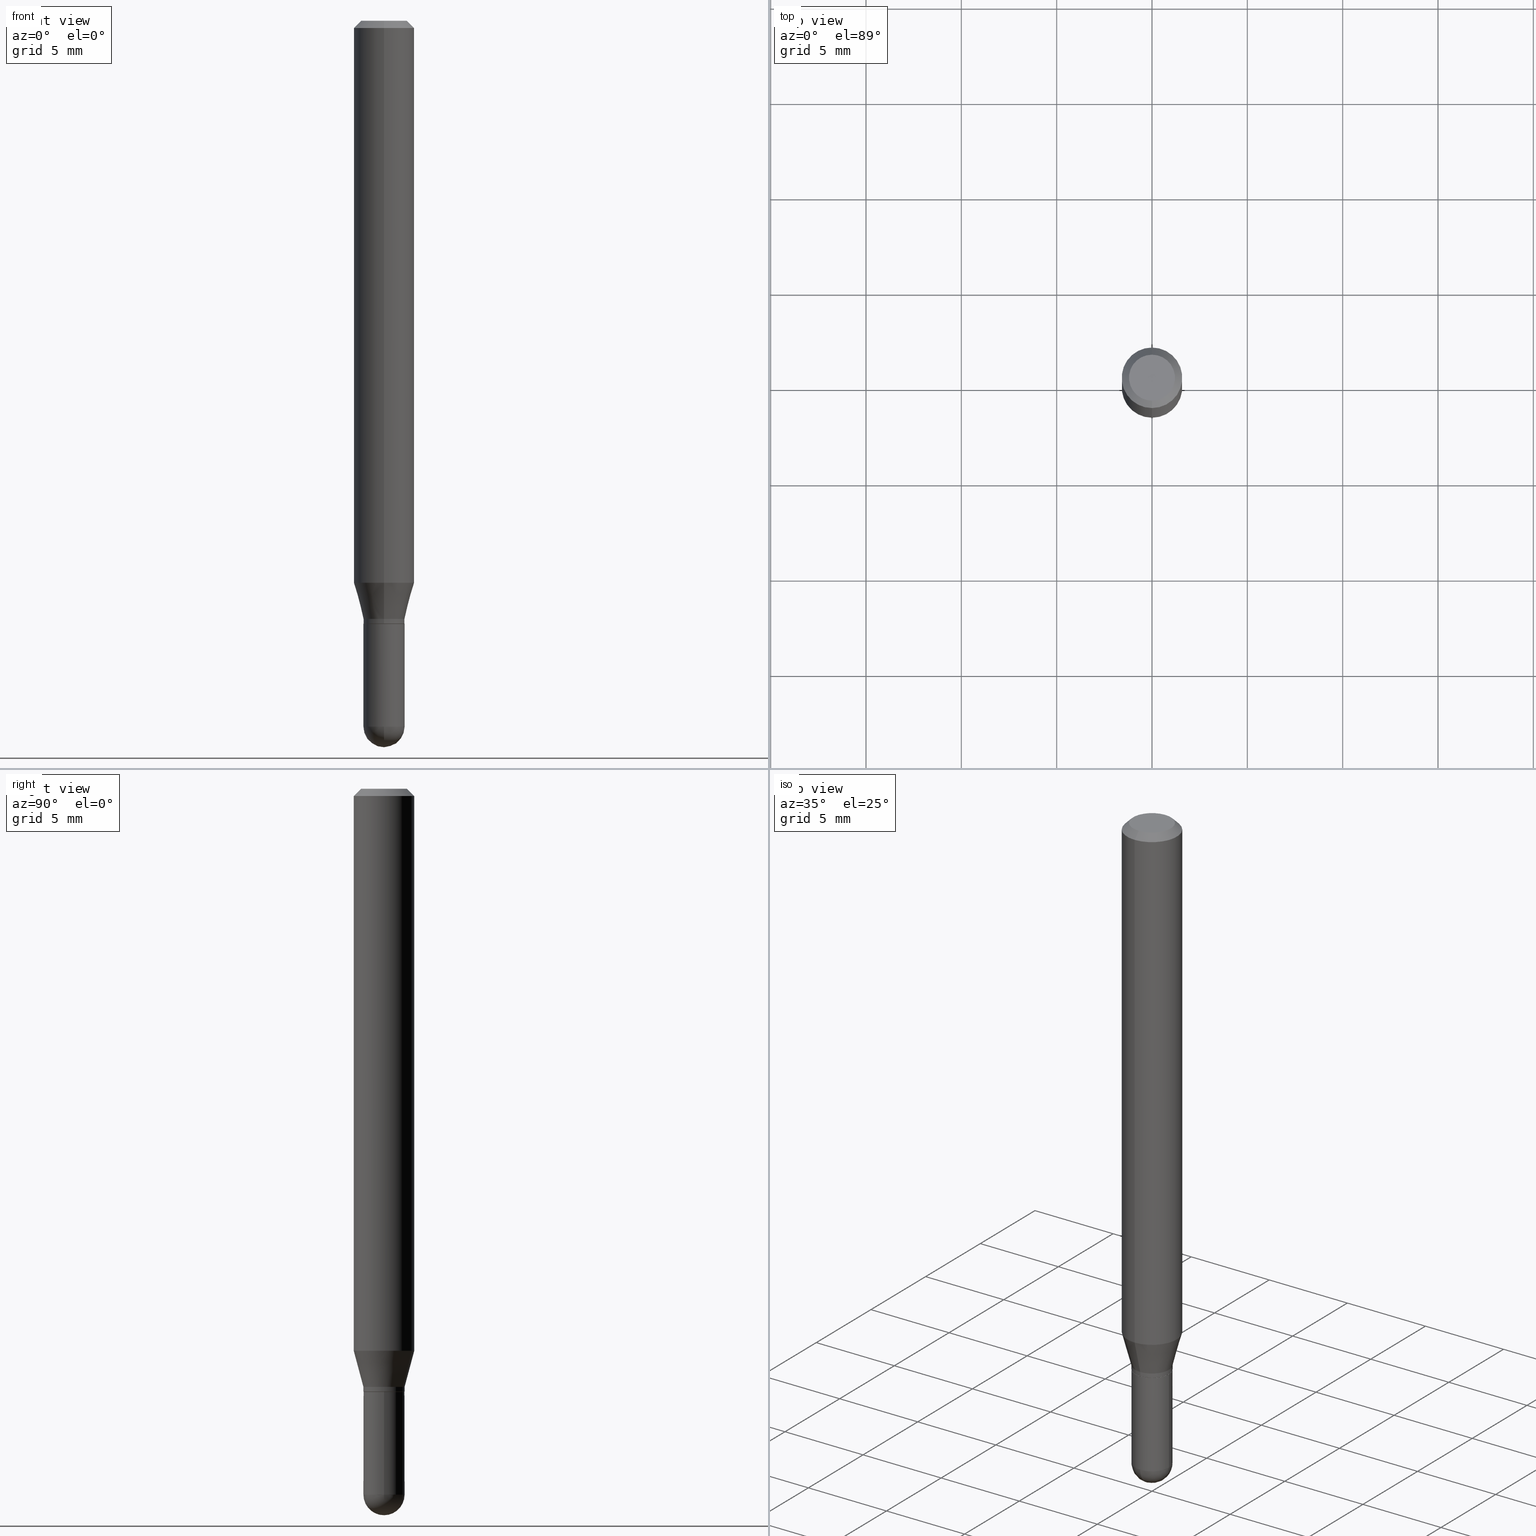
[diagram: canonical four-view strip — front | top / right | iso, engineering-drawing reading convention]
A machine part, canonical four-view strip (front | top / right | iso — engineering-drawing reading convention). The complete STEP part file that produces these views, byte-faithful:
ISO-10303-21;
HEADER;
FILE_DESCRIPTION (( 'STEP AP203' ),
    '1' );
FILE_NAME ('00943.STEP',
    '2024-03-07T19:05:51',
    ( '' ),
    ( '' ),
    'SwSTEP 2.0',
    'SolidWorks 2023',
    '' );
FILE_SCHEMA (( 'CONFIG_CONTROL_DESIGN' ));
ENDSEC;

DATA;
#1 = DIRECTION ( 'NONE',  ( -1.000000000000000000, 6.982962677686265922E-15, -4.883557194083112901E-29 ) ) ;
#2 = ADVANCED_FACE ( 'NONE', ( #134 ), #436, .F. ) ;
#3 = DIRECTION ( 'NONE',  ( -2.445524153731471341E-29, 3.491402078006607573E-15, 1.000000000000000000 ) ) ;
#4 = CARTESIAN_POINT ( 'NONE',  ( 3.044608663700495534E-29, -4.346894266859716647E-15, -1.245000000000000329 ) ) ;
#5 = PERSON_AND_ORGANIZATION_ROLE ( 'creator' ) ;
#6 = EDGE_CURVE ( 'NONE', #243, #298, #480, .T. ) ;
#7 = AXIS2_PLACEMENT_3D ( 'NONE', #495, #297, #339 ) ;
#8 = DIRECTION ( 'NONE',  ( -6.982962677686265922E-15, -1.000000000000000000, 3.491402078006607573E-15 ) ) ;
#9 = CONICAL_SURFACE ( 'NONE', #28, 0.04199999999999999567, 0.7853981633974739252 ) ;
#10 = DATE_AND_TIME ( #292, #64 ) ;
#11 = EDGE_CURVE ( 'NONE', #125, #319, #16, .T. ) ;
#12 = FACE_OUTER_BOUND ( 'NONE', #242, .T. ) ;
#13 = DIRECTION ( 'NONE',  ( -2.445524153731471341E-29, 3.491402078006607573E-15, 1.000000000000000000 ) ) ;
#14 = PERSON_AND_ORGANIZATION ( #176, #182 ) ;
#15 = FACE_OUTER_BOUND ( 'NONE', #431, .T. ) ;
#16 = CIRCLE ( 'NONE', #123, 0.04749999999999999362 ) ;
#17 = ORIENTED_EDGE ( 'NONE', *, *, #23, .T. ) ;
#18 = CIRCLE ( 'NONE', #326, 0.04249999999999991979 ) ;
#19 = CC_DESIGN_APPROVAL ( #82, ( #449 ) ) ;
#20 = CARTESIAN_POINT ( 'NONE',  ( 2.967759138017017551E-16, 0.04249999999999488215, -1.457500000000000462 ) ) ;
#21 = CARTESIAN_POINT ( 'NONE',  ( 3.002043058586724733E-16, 0.04199999999999565192, -1.245000000000000551 ) ) ;
#22 = EDGE_LOOP ( 'NONE', ( #273, #105, #506, #275, #429 ) ) ;
#23 = EDGE_CURVE ( 'NONE', #319, #354, #360, .T. ) ;
#24 = DIRECTION ( 'NONE',  ( -2.445524153731471341E-29, 3.491402078006607573E-15, 1.000000000000000000 ) ) ;
#25 = COORDINATED_UNIVERSAL_TIME_OFFSET ( 5, 0, .BEHIND. ) ;
#26 = DIRECTION ( 'NONE',  ( -2.445524153731471341E-29, 3.491402078006607573E-15, 1.000000000000000000 ) ) ;
#27 = ORIENTED_EDGE ( 'NONE', *, *, #427, .T. ) ;
#28 = AXIS2_PLACEMENT_3D ( 'NONE', #65, #26, #111 ) ;
#29 = CARTESIAN_POINT ( 'NONE',  ( 4.440892098500911138E-16, 0.06249999999999995143, -0.01500000000000022669 ) ) ;
#30 = PRODUCT_RELATED_PRODUCT_CATEGORY ( 'detail', '', ( #144 ) ) ;
#31 = ORIENTED_EDGE ( 'NONE', *, *, #146, .F. ) ;
#32 = APPROVAL_DATE_TIME ( #70, #404 ) ;
#33 = CARTESIAN_POINT ( 'NONE',  ( 3.668286230597209534E-31, -5.237103117009914490E-17, -0.01500000000000000812 ) ) ;
#34 = ORIENTED_EDGE ( 'NONE', *, *, #277, .F. ) ;
#35 = LINE ( 'NONE', #237, #300 ) ;
#36 = ORIENTED_EDGE ( 'NONE', *, *, #62, .F. ) ;
#37 = AXIS2_PLACEMENT_3D ( 'NONE', #4, #167, #365 ) ;
#38 = AXIS2_PLACEMENT_3D ( 'NONE', #336, #24, #451 ) ;
#39 = CC_DESIGN_APPROVAL ( #379, ( #471 ) ) ;
#40 = DIRECTION ( 'NONE',  ( 6.982962677686265922E-15, 1.000000000000000000, -6.427877632151214487E-15 ) ) ;
#41 = ORIENTED_EDGE ( 'NONE', *, *, #195, .T. ) ;
#42 = EDGE_CURVE ( 'NONE', #44, #58, #328, .T. ) ;
#43 = ORIENTED_EDGE ( 'NONE', *, *, #450, .F. ) ;
#44 = VERTEX_POINT ( 'NONE', #171 ) ;
#45 = CARTESIAN_POINT ( 'NONE',  ( 3.666385980913199605E-29, -5.239824382712906867E-15, -1.500000000000000222 ) ) ;
#46 = CARTESIAN_POINT ( 'NONE',  ( 0.04250000000000000999, -5.014640072913468189E-15, -1.457500000000000240 ) ) ;
#47 = CARTESIAN_POINT ( 'NONE',  ( -0.04250000000000000999, 3.019806626980426500E-16, -2.090547413358335560E-30 ) ) ;
#48 = PERSON_AND_ORGANIZATION ( #176, #182 ) ;
#49 = FACE_OUTER_BOUND ( 'NONE', #308, .T. ) ;
#50 = MECHANICAL_CONTEXT ( 'NONE', #397, 'mechanical' ) ;
#51 = ADVANCED_FACE ( 'NONE', ( #49 ), #61, .T. ) ;
#52 = AXIS2_PLACEMENT_3D ( 'NONE', #132, #1, #165 ) ;
#53 = AXIS2_PLACEMENT_3D ( 'NONE', #488, #177, #414 ) ;
#54 = DIRECTION ( 'NONE',  ( -2.445524153731471341E-29, 3.491402078006607573E-15, 1.000000000000000000 ) ) ;
#55 =( NAMED_UNIT ( * ) PLANE_ANGLE_UNIT ( ) SI_UNIT ( $, .RADIAN. ) );
#56 = DIRECTION ( 'NONE',  ( -2.445524153731471341E-29, 3.491402078006607573E-15, 1.000000000000000000 ) ) ;
#57 = DIRECTION ( 'NONE',  ( 1.000000000000000000, -6.982962677686273810E-15, 0.000000000000000000 ) ) ;
#58 = VERTEX_POINT ( 'NONE', #209 ) ;
#59 = DATE_AND_TIME ( #295, #278 ) ;
#60 = CARTESIAN_POINT ( 'NONE',  ( 3.564270785014837509E-29, -5.088834051363884851E-15, -1.457500000000000240 ) ) ;
#61 = CONICAL_SURFACE ( 'NONE', #219, 0.04199999999999999567, 0.7853981633974739252 ) ;
#62 = EDGE_CURVE ( 'NONE', #415, #418, #262, .T. ) ;
#63 = VECTOR ( 'NONE', #71, 39.37007874015748143 ) ;
#64 = LOCAL_TIME ( 14, 5, 51.00000000000000000, #139 ) ;
#65 = CARTESIAN_POINT ( 'NONE',  ( 3.044677571395682722E-29, -4.346795587118226777E-15, -1.245000000000000329 ) ) ;
#66 = ORIENTED_EDGE ( 'NONE', *, *, #42, .F. ) ;
#67 = DIRECTION ( 'NONE',  ( -6.982962677686266711E-15, -1.000000000000000000, 3.491402078006607967E-15 ) ) ;
#68 = MANIFOLD_SOLID_BREP ( 'Body-Move/Copy2[2]', #341 ) ;
#69 = MANIFOLD_SOLID_BREP ( 'Body-Move/Copy2[1]', #509 ) ;
#70 = DATE_AND_TIME ( #340, #439 ) ;
#71 = DIRECTION ( 'NONE',  ( -2.445524153731471341E-29, 3.491402078006607967E-15, 1.000000000000000000 ) ) ;
#72 = EDGE_LOOP ( 'NONE', ( #31, #101, #311, #120 ) ) ;
#73 = CONICAL_SURFACE ( 'NONE', #53, 0.06250000000000000000, 0.7853981633974483900 ) ;
#74 = SHAPE_DEFINITION_REPRESENTATION ( #428, #313 ) ;
#75 = APPROVAL_PERSON_ORGANIZATION ( #233, #404, #265 ) ;
#76 = LINE ( 'NONE', #426, #312 ) ;
#77 = ORIENTED_EDGE ( 'NONE', *, *, #479, .T. ) ;
#78 = CARTESIAN_POINT ( 'NONE',  ( 3.560636328285825248E-29, -5.094038800260261442E-15, -1.457500000000000240 ) ) ;
#79 = ORIENTED_EDGE ( 'NONE', *, *, #215, .T. ) ;
#80 = DIRECTION ( 'NONE',  ( -6.982962677686265922E-15, -1.000000000000000000, 4.370956789862821150E-15 ) ) ;
#81 = ORIENTED_EDGE ( 'NONE', *, *, #484, .F. ) ;
#82 = APPROVAL ( #408, 'UNSPECIFIED' ) ;
#83 = AXIS2_PLACEMENT_3D ( 'NONE', #127, #322, #216 ) ;
#84 = ORIENTED_EDGE ( 'NONE', *, *, #353, .F. ) ;
#85 = EDGE_CURVE ( 'NONE', #458, #354, #299, .T. ) ;
#86 = DIMENSIONAL_EXPONENTS ( 1.000000000000000000, 0.000000000000000000, 0.000000000000000000, 0.000000000000000000, 0.000000000000000000, 0.000000000000000000, 0.000000000000000000 ) ;
#87 = ORIENTED_EDGE ( 'NONE', *, *, #23, .F. ) ;
#88 = ADVANCED_FACE ( 'NONE', ( #94 ), #441, .T. ) ;
#89 = CYLINDRICAL_SURFACE ( 'NONE', #147, 0.04250000000000000999 ) ;
#90 = DIRECTION ( 'NONE',  ( 2.445524153731470781E-29, -3.491402078006607967E-15, -1.000000000000000000 ) ) ;
#91 = CIRCLE ( 'NONE', #192, 0.04199999999999999567 ) ;
#92 = FACE_OUTER_BOUND ( 'NONE', #412, .T. ) ;
#93 = CARTESIAN_POINT ( 'NONE',  ( 0.000000000000000000, 0.000000000000000000, 0.000000000000000000 ) ) ;
#94 = FACE_OUTER_BOUND ( 'NONE', #151, .T. ) ;
#95 = LINE ( 'NONE', #47, #363 ) ;
#96 = APPROVAL_STATUS ( 'not_yet_approved' ) ;
#97 = CIRCLE ( 'NONE', #276, 0.06250000000000000000 ) ;
#98 = DIRECTION ( 'NONE',  ( -6.982962677686265922E-15, -1.000000000000000000, 4.370956789862821150E-15 ) ) ;
#99 = UNCERTAINTY_MEASURE_WITH_UNIT (LENGTH_MEASURE( 1.000000000000000082E-05 ), #373, 'distance_accuracy_value', 'NONE');
#100 = LINE ( 'NONE', #257, #245 ) ;
#101 = ORIENTED_EDGE ( 'NONE', *, *, #410, .T. ) ;
#102 = PERSON_AND_ORGANIZATION_ROLE ( 'design_supplier' ) ;
#103 = EDGE_CURVE ( 'NONE', #485, #415, #95, .T. ) ;
#104 = DIRECTION ( 'NONE',  ( -6.982962677686265922E-15, -1.000000000000000000, 3.483106191921935554E-15 ) ) ;
#105 = ORIENTED_EDGE ( 'NONE', *, *, #103, .T. ) ;
#106 = DIRECTION ( 'NONE',  ( -2.445524153731471341E-29, 3.491402078006607573E-15, 1.000000000000000000 ) ) ;
#107 = CIRCLE ( 'NONE', #7, 0.04249999999999991979 ) ;
#108 = SECURITY_CLASSIFICATION ( '', '', #259 ) ;
#109 = DIRECTION ( 'NONE',  ( -6.982962677686265922E-15, -1.000000000000000000, 3.491402078006607573E-15 ) ) ;
#110 = ADVANCED_FACE ( 'NONE', ( #12 ), #447, .T. ) ;
#111 = DIRECTION ( 'NONE',  ( -6.982962677686265922E-15, -1.000000000000000000, 6.504399984914913214E-15 ) ) ;
#112 = DIRECTION ( 'NONE',  ( -2.445524153731471341E-29, 3.491402078006607573E-15, 1.000000000000000000 ) ) ;
#113 = ORIENTED_EDGE ( 'NONE', *, *, #133, .F. ) ;
#114 = VECTOR ( 'NONE', #164, 39.37007874015748143 ) ;
#115 = AXIS2_PLACEMENT_3D ( 'NONE', #351, #90, #400 ) ;
#116 = CARTESIAN_POINT ( 'NONE',  ( 3.560636328285825248E-29, -5.094038800260261442E-15, -1.457500000000000240 ) ) ;
#117 = EDGE_LOOP ( 'NONE', ( #225, #337, #396, #279 ) ) ;
#118 = DIRECTION ( 'NONE',  ( 2.445524153731471341E-29, -3.491402078006607573E-15, -1.000000000000000000 ) ) ;
#119 = ADVANCED_FACE ( 'NONE', ( #244 ), #204, .T. ) ;
#120 = ORIENTED_EDGE ( 'NONE', *, *, #85, .F. ) ;
#121 = DIRECTION ( 'NONE',  ( 5.024295867788190974E-15, 0.7071067811865681119, 0.7071067811865270336 ) ) ;
#122 = VERTEX_POINT ( 'NONE', #45 ) ;
#123 = AXIS2_PLACEMENT_3D ( 'NONE', #405, #54, #213 ) ;
#124 = CIRCLE ( 'NONE', #448, 0.04250000000000000999 ) ;
#125 = VERTEX_POINT ( 'NONE', #476 ) ;
#126 = ADVANCED_FACE ( 'NONE', ( #128 ), #398, .T. ) ;
#127 = CARTESIAN_POINT ( 'NONE',  ( 0.000000000000000000, 0.000000000000000000, 0.000000000000000000 ) ) ;
#128 = FACE_OUTER_BOUND ( 'NONE', #186, .T. ) ;
#129 = DIRECTION ( 'NONE',  ( -6.982962677686266711E-15, -1.000000000000000000, 6.427877632151220009E-15 ) ) ;
#130 = AXIS2_PLACEMENT_3D ( 'NONE', #270, #112, #323 ) ;
#131 = CARTESIAN_POINT ( 'NONE',  ( 3.044677571395682722E-29, -4.346795587118226777E-15, -1.245000000000000329 ) ) ;
#132 = CARTESIAN_POINT ( 'NONE',  ( 3.560636328285825248E-29, -5.094038800260261442E-15, -1.457500000000000240 ) ) ;
#133 = EDGE_CURVE ( 'NONE', #122, #258, #190, .T. ) ;
#134 = FACE_OUTER_BOUND ( 'NONE', #381, .T. ) ;
#135 = DATE_TIME_ROLE ( 'creation_date' ) ;
#136 = AXIS2_PLACEMENT_3D ( 'NONE', #302, #342, #333 ) ;
#137 = DIRECTION ( 'NONE',  ( -2.445468806185136597E-29, 3.491481338843145583E-15, 1.000000000000000000 ) ) ;
#138 = AXIS2_PLACEMENT_3D ( 'NONE', #93, #214, #251 ) ;
#139 = COORDINATED_UNIVERSAL_TIME_OFFSET ( 5, 0, .BEHIND. ) ;
#140 = ADVANCED_FACE ( 'NONE', ( #92 ), #89, .T. ) ;
#141 = CARTESIAN_POINT ( 'NONE',  ( 2.167733270038758827E-46, -3.094808297856797066E-32, -8.864084481566663675E-18 ) ) ;
#142 = CARTESIAN_POINT ( 'NONE',  ( 3.668286230597209534E-31, -5.237103117009914490E-17, -0.01500000000000000812 ) ) ;
#143 = DATE_TIME_ROLE ( 'classification_date' ) ;
#144 = PRODUCT ( '00943', '00943', '', ( #50 ) ) ;
#145 = DIRECTION ( 'NONE',  ( -2.445468806185136597E-29, 3.491481338843145583E-15, 1.000000000000000000 ) ) ;
#146 = EDGE_CURVE ( 'NONE', #298, #458, #206, .T. ) ;
#147 = AXIS2_PLACEMENT_3D ( 'NONE', #437, #247, #401 ) ;
#148 = CARTESIAN_POINT ( 'NONE',  ( 4.440892098500625669E-16, 0.06250000000000000000, -2.182126298754129733E-16 ) ) ;
#149 = EDGE_LOOP ( 'NONE', ( #236, #240 ) ) ;
#150 = CARTESIAN_POINT ( 'NONE',  ( -4.364351673553912750E-16, -0.06250000000000005551, -0.01499999999999979128 ) ) ;
#151 = EDGE_LOOP ( 'NONE', ( #507, #466, #377, #498 ) ) ;
#152 = DIRECTION ( 'NONE',  ( 4.937700262164548042E-15, 0.7071067811865451302, -0.7071067811865499042 ) ) ;
#153 = ORIENTED_EDGE ( 'NONE', *, *, #335, .F. ) ;
#154 = VECTOR ( 'NONE', #481, 39.37007874015748143 ) ;
#155 = CIRCLE ( 'NONE', #357, 0.06250000000000000000 ) ;
#156 = EDGE_CURVE ( 'NONE', #504, #485, #310, .T. ) ;
#157 = CYLINDRICAL_SURFACE ( 'NONE', #407, 0.04250000000000000999 ) ;
#158 = VERTEX_POINT ( 'NONE', #294 ) ;
#159 = DIRECTION ( 'NONE',  ( 1.000000000000000000, -6.982962677686273810E-15, 0.000000000000000000 ) ) ;
#160 = EDGE_LOOP ( 'NONE', ( #87, #468, #349, #344 ) ) ;
#161 = ORIENTED_EDGE ( 'NONE', *, *, #62, .T. ) ;
#162 = EDGE_CURVE ( 'NONE', #197, #44, #100, .T. ) ;
#163 = CIRCLE ( 'NONE', #496, 0.04249999999999999611 ) ;
#164 = DIRECTION ( 'NONE',  ( -4.851104656540964275E-15, -0.7071067811865500152, -0.7071067811865450192 ) ) ;
#165 = DIRECTION ( 'NONE',  ( 6.982962677686265922E-15, 1.000000000000000000, -6.427877632151214487E-15 ) ) ;
#166 = CARTESIAN_POINT ( 'NONE',  ( 0.04250000000000000999, -2.967759138016664042E-16, 2.072375129713273202E-30 ) ) ;
#167 = DIRECTION ( 'NONE',  ( -2.445468806185136597E-29, 3.491481338843145583E-15, 1.000000000000000000 ) ) ;
#168 = COORDINATED_UNIVERSAL_TIME_OFFSET ( 5, 0, .BEHIND. ) ;
#169 = CC_DESIGN_DATE_AND_TIME_ASSIGNMENT ( #179, #135, ( #471 ) ) ;
#170 = APPROVAL_PERSON_ORGANIZATION ( #249, #82, #402 ) ;
#171 = CARTESIAN_POINT ( 'NONE',  ( -2.967759138016344061E-16, -0.04250000000000413863, -1.244500000000000162 ) ) ;
#172 = PERSON_AND_ORGANIZATION ( #176, #182 ) ;
#173 = DIRECTION ( 'NONE',  ( 2.438088387897960049E-29, -3.491481338843145188E-15, -1.000000000000000000 ) ) ;
#174 = ADVANCED_FACE ( 'NONE', ( #221 ), #9, .T. ) ;
#175 =( LENGTH_UNIT ( ) NAMED_UNIT ( * ) SI_UNIT ( $, .METRE. ) );
#176 = PERSON ( 'UNSPECIFIED', 'UNSPECIFIED', 'UNSPECIFIED', ('UNSPECIFIED'), ('UNSPECIFIED'), ('UNSPECIFIED') ) ;
#177 = DIRECTION ( 'NONE',  ( 2.445524153731471341E-29, -3.491402078006607573E-15, -1.000000000000000000 ) ) ;
#178 = EDGE_CURVE ( 'NONE', #238, #197, #254, .T. ) ;
#179 = DATE_AND_TIME ( #331, #222 ) ;
#180 = VECTOR ( 'NONE', #499, 39.37007874015748143 ) ;
#181 = PLANE ( 'NONE',  #136 ) ;
#182 = ORGANIZATION ( 'UNSPECIFIED', 'UNSPECIFIED', '' ) ;
#183 = ORIENTED_EDGE ( 'NONE', *, *, #264, .T. ) ;
#184 = APPROVAL_DATE_TIME ( #10, #82 ) ;
#185 = FACE_OUTER_BOUND ( 'NONE', #475, .T. ) ;
#186 = EDGE_LOOP ( 'NONE', ( #113, #434, #153, #493 ) ) ;
#187 = CARTESIAN_POINT ( 'NONE',  ( -2.967759138016355400E-16, -0.04250000000000423578, -1.234999999999999876 ) ) ;
#188 = DESIGN_CONTEXT ( 'detailed design', #508, 'design' ) ;
#189 = CC_DESIGN_DATE_AND_TIME_ASSIGNMENT ( #455, #143, ( #108 ) ) ;
#190 = CIRCLE ( 'NONE', #472, 0.04249999999999995448 ) ;
#191 = CARTESIAN_POINT ( 'NONE',  ( 3.020222329858367571E-29, -4.311881566338161202E-15, -1.235000000000000098 ) ) ;
#192 = AXIS2_PLACEMENT_3D ( 'NONE', #334, #361, #368 ) ;
#193 = LINE ( 'NONE', #345, #180 ) ;
#194 = ORIENTED_EDGE ( 'NONE', *, *, #178, .F. ) ;
#195 = EDGE_CURVE ( 'NONE', #158, #58, #18, .T. ) ;
#196 = FACE_OUTER_BOUND ( 'NONE', #22, .T. ) ;
#197 = VERTEX_POINT ( 'NONE', #367 ) ;
#198 = FACE_OUTER_BOUND ( 'NONE', #149, .T. ) ;
#199 = ORIENTED_EDGE ( 'NONE', *, *, #450, .T. ) ;
#200 = ADVANCED_FACE ( 'NONE', ( #492 ), #73, .T. ) ;
#201 = ORIENTED_EDGE ( 'NONE', *, *, #442, .T. ) ;
#202 = ORIENTED_EDGE ( 'NONE', *, *, #296, .F. ) ;
#203 = AXIS2_PLACEMENT_3D ( 'NONE', #348, #424, #159 ) ;
#204 = CYLINDRICAL_SURFACE ( 'NONE', #406, 0.06250000000000000000 ) ;
#205 = LINE ( 'NONE', #166, #510 ) ;
#206 = LINE ( 'NONE', #148, #63 ) ;
#207 = ADVANCED_FACE ( 'NONE', ( #454 ), #419, .T. ) ;
#208 = APPROVAL_ROLE ( '' ) ;
#209 = CARTESIAN_POINT ( 'NONE',  ( -2.967759138016355400E-16, -0.04250000000000423578, -1.234999999999999876 ) ) ;
#210 = AXIS2_PLACEMENT_3D ( 'NONE', #252, #403, #362 ) ;
#211 = PERSON_AND_ORGANIZATION ( #176, #182 ) ;
#212 = AXIS2_PLACEMENT_3D ( 'NONE', #267, #106, #497 ) ;
#213 = DIRECTION ( 'NONE',  ( -6.982962677686266711E-15, -1.000000000000000000, 3.491402078006607967E-15 ) ) ;
#214 = DIRECTION ( 'NONE',  ( 0.000000000000000000, 0.000000000000000000, 1.000000000000000000 ) ) ;
#215 = EDGE_CURVE ( 'NONE', #354, #458, #155, .T. ) ;
#216 = DIRECTION ( 'NONE',  ( -6.982962677686266711E-15, -1.000000000000000000, 3.491402078006607573E-15 ) ) ;
#217 = PERSON_AND_ORGANIZATION ( #176, #182 ) ;
#218 = DIRECTION ( 'NONE',  ( -1.807323732225329350E-15, -0.2588190451025180194, 0.9659258262890689783 ) ) ;
#219 = AXIS2_PLACEMENT_3D ( 'NONE', #131, #283, #409 ) ;
#220 = CIRCLE ( 'NONE', #203, 0.04250000000000000999 ) ;
#221 = FACE_OUTER_BOUND ( 'NONE', #347, .T. ) ;
#222 = LOCAL_TIME ( 14, 5, 51.00000000000000000, #487 ) ;
#223 = ORIENTED_EDGE ( 'NONE', *, *, #486, .F. ) ;
#224 = DIRECTION ( 'NONE',  ( -2.445524153731471341E-29, 3.491402078006607573E-15, 1.000000000000000000 ) ) ;
#225 = ORIENTED_EDGE ( 'NONE', *, *, #306, .F. ) ;
#226 = EDGE_CURVE ( 'NONE', #418, #415, #163, .T. ) ;
#227 = CARTESIAN_POINT ( 'NONE',  ( 4.440892098500911138E-16, 0.06249999999999597544, -1.160358983848622794 ) ) ;
#228 = EDGE_LOOP ( 'NONE', ( #201, #77, #43, #66 ) ) ;
#229 = DIRECTION ( 'NONE',  ( -6.982962677686266711E-15, -1.000000000000000000, 6.427877632151220009E-15 ) ) ;
#230 = CIRCLE ( 'NONE', #320, 0.04749999999999999362 ) ;
#231 =( GEOMETRIC_REPRESENTATION_CONTEXT ( 3 ) GLOBAL_UNCERTAINTY_ASSIGNED_CONTEXT ( ( #99 ) ) GLOBAL_UNIT_ASSIGNED_CONTEXT ( ( #373, #55, #443 ) ) REPRESENTATION_CONTEXT ( 'NONE', 'WORKASPACE' ) );
#232 = AXIS2_PLACEMENT_3D ( 'NONE', #287, #173, #358 ) ;
#233 = PERSON_AND_ORGANIZATION ( #176, #182 ) ;
#234 = DIRECTION ( 'NONE',  ( -1.000000000000000000, 6.982962677686265922E-15, -4.883557194083112901E-29 ) ) ;
#235 = EDGE_CURVE ( 'NONE', #485, #258, #391, .T. ) ;
#236 = ORIENTED_EDGE ( 'NONE', *, *, #11, .T. ) ;
#237 = CARTESIAN_POINT ( 'NONE',  ( -4.364351673553916201E-16, -0.06250000000000000000, 2.182126298754129733E-16 ) ) ;
#238 = VERTEX_POINT ( 'NONE', #21 ) ;
#239 = CARTESIAN_POINT ( 'NONE',  ( 2.837685922001112883E-29, -4.051279767442715559E-15, -1.160358983848622572 ) ) ;
#240 = ORIENTED_EDGE ( 'NONE', *, *, #296, .T. ) ;
#241 = AXIS2_PLACEMENT_3D ( 'NONE', #369, #224, #109 ) ;
#242 = EDGE_LOOP ( 'NONE', ( #491, #41, #394, #261 ) ) ;
#243 = VERTEX_POINT ( 'NONE', #417 ) ;
#244 = FACE_OUTER_BOUND ( 'NONE', #72, .T. ) ;
#245 = VECTOR ( 'NONE', #260, 39.37007874015748143 ) ;
#246 = DIRECTION ( 'NONE',  ( -2.445468806185136597E-29, 3.491481338843145583E-15, 1.000000000000000000 ) ) ;
#247 = DIRECTION ( 'NONE',  ( -2.445468806185136597E-29, 3.491481338843145583E-15, 1.000000000000000000 ) ) ;
#248 = ADVANCED_FACE ( 'NONE', ( #185 ), #301, .T. ) ;
#249 = PERSON_AND_ORGANIZATION ( #176, #182 ) ;
#250 = DIRECTION ( 'NONE',  ( -2.445468806185136877E-29, 3.491481338843145188E-15, 1.000000000000000000 ) ) ;
#251 = DIRECTION ( 'NONE',  ( 1.000000000000000000, 0.000000000000000000, 0.000000000000000000 ) ) ;
#252 = CARTESIAN_POINT ( 'NONE',  ( 3.020222329858367571E-29, -4.311881566338161202E-15, -1.235000000000000098 ) ) ;
#253 = PERSON_AND_ORGANIZATION_ROLE ( 'creator' ) ;
#254 = CIRCLE ( 'NONE', #212, 0.04199999999999999567 ) ;
#255 = CARTESIAN_POINT ( 'NONE',  ( -4.287811248607203282E-16, -0.06250000000000005551, -0.01499999999999979128 ) ) ;
#256 = APPLICATION_PROTOCOL_DEFINITION ( 'international standard', 'config_control_design', 1994, #397 ) ;
#257 = CARTESIAN_POINT ( 'NONE',  ( -2.932844324627926808E-16, -0.04200000000000434636, -1.244999999999999885 ) ) ;
#258 = VERTEX_POINT ( 'NONE', #411 ) ;
#259 = SECURITY_CLASSIFICATION_LEVEL ( 'unclassified' ) ;
#260 = DIRECTION ( 'NONE',  ( -4.937700262164674260E-15, -0.7071067811865632269, 0.7071067811865319186 ) ) ;
#261 = ORIENTED_EDGE ( 'NONE', *, *, #410, .F. ) ;
#262 = CIRCLE ( 'NONE', #37, 0.04249999999999999611 ) ;
#263 = DIRECTION ( 'NONE',  ( -6.982962677686266711E-15, -1.000000000000000000, 6.427877632151220009E-15 ) ) ;
#264 = EDGE_CURVE ( 'NONE', #258, #425, #124, .T. ) ;
#265 = APPROVAL_ROLE ( '' ) ;
#266 = LINE ( 'NONE', #187, #382 ) ;
#267 = CARTESIAN_POINT ( 'NONE',  ( 3.044677571395682722E-29, -4.346795587118226777E-15, -1.245000000000000329 ) ) ;
#268 = CARTESIAN_POINT ( 'NONE',  ( 3.019806626980419597E-16, 0.04249999999999991979, -1.483845883152805418E-16 ) ) ;
#269 = ORIENTED_EDGE ( 'NONE', *, *, #353, .T. ) ;
#270 = CARTESIAN_POINT ( 'NONE',  ( 0.000000000000000000, 0.000000000000000000, 0.000000000000000000 ) ) ;
#271 = ORIENTED_EDGE ( 'NONE', *, *, #215, .F. ) ;
#272 = CARTESIAN_POINT ( 'NONE',  ( -3.773273898774340269E-16, -0.04749999999999999362, 1.569775142237472048E-16 ) ) ;
#273 = ORIENTED_EDGE ( 'NONE', *, *, #156, .T. ) ;
#274 = PLANE ( 'NONE',  #115 ) ;
#275 = ORIENTED_EDGE ( 'NONE', *, *, #427, .F. ) ;
#276 = AXIS2_PLACEMENT_3D ( 'NONE', #239, #500, #80 ) ;
#277 = EDGE_CURVE ( 'NONE', #58, #243, #266, .T. ) ;
#278 = LOCAL_TIME ( 14, 5, 51.00000000000000000, #364 ) ;
#279 = ORIENTED_EDGE ( 'NONE', *, *, #156, .F. ) ;
#280 = CARTESIAN_POINT ( 'NONE',  ( -2.967759138016657633E-16, -0.04249999999999991979, 1.483845883152805418E-16 ) ) ;
#281 = DIRECTION ( 'NONE',  ( -1.000000000000000000, 7.105427357601001070E-15, -4.926315508542082329E-29 ) ) ;
#282 = CARTESIAN_POINT ( 'NONE',  ( 3.020222329858367571E-29, -4.311881566338161202E-15, -1.235000000000000098 ) ) ;
#283 = DIRECTION ( 'NONE',  ( -2.445524153731471341E-29, 3.491402078006607573E-15, 1.000000000000000000 ) ) ;
#284 = CARTESIAN_POINT ( 'NONE',  ( 3.560636328285825248E-29, -5.094038800260261442E-15, -1.457500000000000240 ) ) ;
#285 = EDGE_CURVE ( 'NONE', #305, #44, #107, .T. ) ;
#286 = APPLICATION_PROTOCOL_DEFINITION ( 'international standard', 'config_control_design', 1994, #508 ) ;
#287 = CARTESIAN_POINT ( 'NONE',  ( 2.967759138016967261E-16, 0.04249999999999565237, -1.245000000000000551 ) ) ;
#288 = LENGTH_MEASURE_WITH_UNIT ( LENGTH_MEASURE( 0.02539999999999999897 ), #175 );
#289 = CIRCLE ( 'NONE', #423, 0.04249999999999991979 ) ;
#290 = DIRECTION ( 'NONE',  ( 1.000000000000000000, -6.982962677686265133E-15, 0.000000000000000000 ) ) ;
#291 = ORIENTED_EDGE ( 'NONE', *, *, #162, .F. ) ;
#292 = CALENDAR_DATE ( 2024, 7, 3 ) ;
#293 = ADVANCED_FACE ( 'NONE', ( #15 ), #181, .F. ) ;
#294 = CARTESIAN_POINT ( 'NONE',  ( 3.730349362740815744E-16, 0.04249999999999561073, -1.235000000000000320 ) ) ;
#295 = CALENDAR_DATE ( 2024, 7, 3 ) ;
#296 = EDGE_CURVE ( 'NONE', #319, #125, #230, .T. ) ;
#297 = DIRECTION ( 'NONE',  ( -2.445524153731471341E-29, 3.491402078006607573E-15, 1.000000000000000000 ) ) ;
#298 = VERTEX_POINT ( 'NONE', #227 ) ;
#299 = CIRCLE ( 'NONE', #325, 0.06250000000000000000 ) ;
#300 = VECTOR ( 'NONE', #503, 39.37007874015748143 ) ;
#301 = CONICAL_SURFACE ( 'NONE', #38, 0.04249999999999991979, 0.2617993877991501850 ) ;
#302 = CARTESIAN_POINT ( 'NONE',  ( 3.044677571395682722E-29, -4.346795587118226777E-15, -1.245000000000000329 ) ) ;
#303 = ORIENTED_EDGE ( 'NONE', *, *, #146, .T. ) ;
#304 = DIRECTION ( 'NONE',  ( 1.000000000000000000, -6.982962677686273810E-15, 0.000000000000000000 ) ) ;
#305 = VERTEX_POINT ( 'NONE', #380 ) ;
#306 = EDGE_CURVE ( 'NONE', #122, #504, #374, .T. ) ;
#307 = LINE ( 'NONE', #268, #464 ) ;
#308 = EDGE_LOOP ( 'NONE', ( #84, #470, #501, #392 ) ) ;
#309 = DIRECTION ( 'NONE',  ( 6.982962677686265922E-15, 1.000000000000000000, -3.483106191921935554E-15 ) ) ;
#310 = CIRCLE ( 'NONE', #502, 0.04250000000000000999 ) ;
#311 = ORIENTED_EDGE ( 'NONE', *, *, #338, .T. ) ;
#312 = VECTOR ( 'NONE', #152, 39.37007874015748143 ) ;
#313 = ADVANCED_BREP_SHAPE_REPRESENTATION ( '00943', ( #69, #68, #138 ), #231 ) ;
#314 = CYLINDRICAL_SURFACE ( 'NONE', #130, 0.04249999999999991979 ) ;
#315 = ORIENTED_EDGE ( 'NONE', *, *, #226, .T. ) ;
#316 = LINE ( 'NONE', #467, #473 ) ;
#317 = CC_DESIGN_PERSON_AND_ORGANIZATION_ASSIGNMENT ( #172, #5, ( #449 ) ) ;
#318 = ORIENTED_EDGE ( 'NONE', *, *, #463, .T. ) ;
#319 = VERTEX_POINT ( 'NONE', #272 ) ;
#320 = AXIS2_PLACEMENT_3D ( 'NONE', #141, #457, #67 ) ;
#321 = DIRECTION ( 'NONE',  ( -6.982962677686265922E-15, -1.000000000000000000, 3.483106191921935554E-15 ) ) ;
#322 = DIRECTION ( 'NONE',  ( -2.445524153731471341E-29, 3.491402078006607573E-15, 1.000000000000000000 ) ) ;
#323 = DIRECTION ( 'NONE',  ( -6.982962677686266711E-15, -1.000000000000000000, 3.491402078006607573E-15 ) ) ;
#324 = CARTESIAN_POINT ( 'NONE',  ( 3.668286230597209534E-31, -5.237103117009914490E-17, -0.01500000000000000812 ) ) ;
#325 = AXIS2_PLACEMENT_3D ( 'NONE', #324, #56, #321 ) ;
#326 = AXIS2_PLACEMENT_3D ( 'NONE', #191, #422, #263 ) ;
#327 = CALENDAR_DATE ( 2024, 7, 3 ) ;
#328 = LINE ( 'NONE', #280, #154 ) ;
#329 = APPROVAL_DATE_TIME ( #59, #379 ) ;
#330 = CARTESIAN_POINT ( 'NONE',  ( 3.044608663700495534E-29, -4.346894266859716647E-15, -1.245000000000000329 ) ) ;
#331 = CALENDAR_DATE ( 2024, 7, 3 ) ;
#332 = AXIS2_PLACEMENT_3D ( 'NONE', #116, #234, #40 ) ;
#333 = DIRECTION ( 'NONE',  ( -6.982962677686265922E-15, -1.000000000000000000, 3.491402078006607967E-15 ) ) ;
#334 = CARTESIAN_POINT ( 'NONE',  ( 3.044677571395682722E-29, -4.346795587118226777E-15, -1.245000000000000329 ) ) ;
#335 = EDGE_CURVE ( 'NONE', #425, #504, #220, .T. ) ;
#336 = CARTESIAN_POINT ( 'NONE',  ( 3.020222329858367571E-29, -4.311881566338161202E-15, -1.235000000000000098 ) ) ;
#337 = ORIENTED_EDGE ( 'NONE', *, *, #133, .T. ) ;
#338 = EDGE_CURVE ( 'NONE', #243, #354, #35, .T. ) ;
#339 = DIRECTION ( 'NONE',  ( -6.982962677686266711E-15, -1.000000000000000000, 6.427877632151220009E-15 ) ) ;
#340 = CALENDAR_DATE ( 2024, 7, 3 ) ;
#341 = CLOSED_SHELL ( 'NONE', ( #386, #174, #200, #207, #248, #110, #119, #389, #371, #293, #51, #88 ) ) ;
#342 = DIRECTION ( 'NONE',  ( -2.445524153731470781E-29, 3.491402078006607967E-15, 1.000000000000000000 ) ) ;
#343 = ADVANCED_FACE ( 'NONE', ( #478 ), #461, .T. ) ;
#344 = ORIENTED_EDGE ( 'NONE', *, *, #85, .T. ) ;
#345 = CARTESIAN_POINT ( 'NONE',  ( 3.019806626980721830E-16, 0.04249999999999561073, -1.235000000000000320 ) ) ;
#346 = FACE_OUTER_BOUND ( 'NONE', #160, .T. ) ;
#347 = EDGE_LOOP ( 'NONE', ( #355, #269, #388, #291 ) ) ;
#348 = CARTESIAN_POINT ( 'NONE',  ( 3.564270785014837509E-29, -5.088834051363884851E-15, -1.457500000000000240 ) ) ;
#349 = ORIENTED_EDGE ( 'NONE', *, *, #484, .T. ) ;
#350 = CC_DESIGN_PERSON_AND_ORGANIZATION_ASSIGNMENT ( #217, #445, ( #144 ) ) ;
#351 = CARTESIAN_POINT ( 'NONE',  ( 3.316907271900976096E-16, 0.04749999999999999362, -1.702736409460971926E-16 ) ) ;
#352 = ORIENTED_EDGE ( 'NONE', *, *, #103, .F. ) ;
#353 = EDGE_CURVE ( 'NONE', #238, #305, #316, .T. ) ;
#354 = VERTEX_POINT ( 'NONE', #150 ) ;
#355 = ORIENTED_EDGE ( 'NONE', *, *, #486, .T. ) ;
#356 = ADVANCED_FACE ( 'NONE', ( #196 ), #157, .T. ) ;
#357 = AXIS2_PLACEMENT_3D ( 'NONE', #142, #13, #104 ) ;
#358 = DIRECTION ( 'NONE',  ( -1.000000000000000000, 6.982962677686265922E-15, -4.876176775795935793E-29 ) ) ;
#359 = CARTESIAN_POINT ( 'NONE',  ( 3.043454809318817385E-29, -4.345049886079224721E-15, -1.244500000000000384 ) ) ;
#360 = LINE ( 'NONE', #255, #114 ) ;
#361 = DIRECTION ( 'NONE',  ( -2.445524153731471341E-29, 3.491402078006607573E-15, 1.000000000000000000 ) ) ;
#362 = DIRECTION ( 'NONE',  ( -6.982962677686266711E-15, -1.000000000000000000, 6.427877632151220009E-15 ) ) ;
#363 = VECTOR ( 'NONE', #250, 39.37007874015748143 ) ;
#364 = COORDINATED_UNIVERSAL_TIME_OFFSET ( 5, 0, .BEHIND. ) ;
#365 = DIRECTION ( 'NONE',  ( 1.000000000000000000, -6.982962677686265133E-15, 0.000000000000000000 ) ) ;
#366 = CARTESIAN_POINT ( 'NONE',  ( -0.04250000000000000999, -4.415883496413759874E-15, -1.457500000000000240 ) ) ;
#367 = CARTESIAN_POINT ( 'NONE',  ( -2.932844324627926808E-16, -0.04200000000000434636, -1.244999999999999885 ) ) ;
#368 = DIRECTION ( 'NONE',  ( -6.982962677686265922E-15, -1.000000000000000000, 6.504399984914913214E-15 ) ) ;
#369 = CARTESIAN_POINT ( 'NONE',  ( 0.000000000000000000, 0.000000000000000000, 0.000000000000000000 ) ) ;
#370 = ORIENTED_EDGE ( 'NONE', *, *, #338, .F. ) ;
#371 = ADVANCED_FACE ( 'NONE', ( #198 ), #274, .F. ) ;
#372 = AXIS2_PLACEMENT_3D ( 'NONE', #446, #477, #98 ) ;
#373 =( CONVERSION_BASED_UNIT ( 'INCH', #288 ) LENGTH_UNIT ( ) NAMED_UNIT ( #86 ) );
#374 = CIRCLE ( 'NONE', #438, 0.04249999999999995448 ) ;
#375 = CC_DESIGN_APPROVAL ( #404, ( #108 ) ) ;
#376 = CARTESIAN_POINT ( 'NONE',  ( 3.564270785014837509E-29, -5.088834051363884851E-15, -1.457500000000000240 ) ) ;
#377 = ORIENTED_EDGE ( 'NONE', *, *, #42, .T. ) ;
#378 = DIRECTION ( 'NONE',  ( -2.445468806185136597E-29, 3.491481338843145583E-15, 1.000000000000000000 ) ) ;
#379 = APPROVAL ( #96, 'UNSPECIFIED' ) ;
#380 = CARTESIAN_POINT ( 'NONE',  ( 3.019806626980733170E-16, 0.04249999999999570788, -1.244500000000000606 ) ) ;
#381 = EDGE_LOOP ( 'NONE', ( #315, #161 ) ) ;
#382 = VECTOR ( 'NONE', #218, 39.37007874015749564 ) ;
#383 = FACE_OUTER_BOUND ( 'NONE', #228, .T. ) ;
#384 = DIRECTION ( 'NONE',  ( 1.000000000000000000, -6.982962677686266711E-15, 4.876176775795935793E-29 ) ) ;
#385 = ORIENTED_EDGE ( 'NONE', *, *, #6, .T. ) ;
#386 = ADVANCED_FACE ( 'NONE', ( #383 ), #314, .T. ) ;
#387 = DIRECTION ( 'NONE',  ( 1.000000000000000000, -6.982962677686265922E-15, 4.883557194083112340E-29 ) ) ;
#388 = ORIENTED_EDGE ( 'NONE', *, *, #442, .F. ) ;
#389 = ADVANCED_FACE ( 'NONE', ( #346 ), #416, .T. ) ;
#390 = CARTESIAN_POINT ( 'NONE',  ( -0.04249999999999999611, -4.415883496413758296E-15, -1.245000000000000329 ) ) ;
#391 = CIRCLE ( 'NONE', #482, 0.04250000000000000999 ) ;
#392 = ORIENTED_EDGE ( 'NONE', *, *, #285, .F. ) ;
#393 = APPROVAL_PERSON_ORGANIZATION ( #211, #379, #208 ) ;
#394 = ORIENTED_EDGE ( 'NONE', *, *, #277, .T. ) ;
#395 = CC_DESIGN_PERSON_AND_ORGANIZATION_ASSIGNMENT ( #14, #253, ( #471 ) ) ;
#396 = ORIENTED_EDGE ( 'NONE', *, *, #235, .F. ) ;
#397 = APPLICATION_CONTEXT ( 'configuration controlled 3d designs of mechanical parts and assemblies' ) ;
#398 = SPHERICAL_SURFACE ( 'NONE', #52, 0.04249999999999995448 ) ;
#399 = AXIS2_PLACEMENT_3D ( 'NONE', #282, #440, #229 ) ;
#400 = DIRECTION ( 'NONE',  ( 6.982962677686265922E-15, 1.000000000000000000, -3.491402078006607967E-15 ) ) ;
#401 = DIRECTION ( 'NONE',  ( 1.000000000000000000, -6.982962677686266711E-15, 4.876176775795935793E-29 ) ) ;
#402 = APPROVAL_ROLE ( '' ) ;
#403 = DIRECTION ( 'NONE',  ( -2.445524153731471341E-29, 3.491402078006607573E-15, 1.000000000000000000 ) ) ;
#404 = APPROVAL ( #421, 'UNSPECIFIED' ) ;
#405 = CARTESIAN_POINT ( 'NONE',  ( 2.167733270038758827E-46, -3.094808297856797066E-32, -8.864084481566663675E-18 ) ) ;
#406 = AXIS2_PLACEMENT_3D ( 'NONE', #512, #483, #8 ) ;
#407 = AXIS2_PLACEMENT_3D ( 'NONE', #469, #246, #384 ) ;
#408 = APPROVAL_STATUS ( 'not_yet_approved' ) ;
#409 = DIRECTION ( 'NONE',  ( -6.982962677686265922E-15, -1.000000000000000000, 6.504399984914913214E-15 ) ) ;
#410 = EDGE_CURVE ( 'NONE', #298, #243, #97, .T. ) ;
#411 = CARTESIAN_POINT ( 'NONE',  ( -3.019806626980067075E-16, -0.04250000000000507538, -1.457500000000000018 ) ) ;
#412 = EDGE_LOOP ( 'NONE', ( #352, #420, #183, #27, #36 ) ) ;
#413 = PERSON_AND_ORGANIZATION_ROLE ( 'classification_officer' ) ;
#414 = DIRECTION ( 'NONE',  ( 6.982962677686265922E-15, 1.000000000000000000, -3.483106191921935554E-15 ) ) ;
#415 = VERTEX_POINT ( 'NONE', #390 ) ;
#416 = CONICAL_SURFACE ( 'NONE', #432, 0.06250000000000000000, 0.7853981633974483900 ) ;
#417 = CARTESIAN_POINT ( 'NONE',  ( -4.364351673553629253E-16, -0.06250000000000401068, -1.160358983848622128 ) ) ;
#418 = VERTEX_POINT ( 'NONE', #505 ) ;
#419 = CYLINDRICAL_SURFACE ( 'NONE', #241, 0.06250000000000000000 ) ;
#420 = ORIENTED_EDGE ( 'NONE', *, *, #235, .T. ) ;
#421 = APPROVAL_STATUS ( 'not_yet_approved' ) ;
#422 = DIRECTION ( 'NONE',  ( -2.445524153731471341E-29, 3.491402078006607573E-15, 1.000000000000000000 ) ) ;
#423 = AXIS2_PLACEMENT_3D ( 'NONE', #359, #3, #129 ) ;
#424 = DIRECTION ( 'NONE',  ( -2.445468806185136597E-29, 3.491481338843145583E-15, 1.000000000000000000 ) ) ;
#425 = VERTEX_POINT ( 'NONE', #46 ) ;
#426 = CARTESIAN_POINT ( 'NONE',  ( 4.364351673553919652E-16, 0.06249999999999995143, -0.01500000000000022669 ) ) ;
#427 = EDGE_CURVE ( 'NONE', #425, #418, #205, .T. ) ;
#428 = PRODUCT_DEFINITION_SHAPE ( 'NONE', 'NONE',  #471 ) ;
#429 = ORIENTED_EDGE ( 'NONE', *, *, #335, .T. ) ;
#430 = DIRECTION ( 'NONE',  ( -2.445468806185136877E-29, 3.491481338843145188E-15, 1.000000000000000000 ) ) ;
#431 = EDGE_LOOP ( 'NONE', ( #223, #194 ) ) ;
#432 = AXIS2_PLACEMENT_3D ( 'NONE', #33, #118, #309 ) ;
#433 = DIRECTION ( 'NONE',  ( 6.982962677686266711E-15, 1.000000000000000000, 0.000000000000000000 ) ) ;
#434 = ORIENTED_EDGE ( 'NONE', *, *, #306, .T. ) ;
#435 = EDGE_LOOP ( 'NONE', ( #202, #17, #79, #81 ) ) ;
#436 = PLANE ( 'NONE',  #232 ) ;
#437 = CARTESIAN_POINT ( 'NONE',  ( 0.000000000000000000, 0.000000000000000000, 0.000000000000000000 ) ) ;
#438 = AXIS2_PLACEMENT_3D ( 'NONE', #78, #387, #433 ) ;
#439 = LOCAL_TIME ( 14, 5, 51.00000000000000000, #25 ) ;
#440 = DIRECTION ( 'NONE',  ( -2.445524153731471341E-29, 3.491402078006607573E-15, 1.000000000000000000 ) ) ;
#441 = CYLINDRICAL_SURFACE ( 'NONE', #83, 0.04249999999999991979 ) ;
#442 = EDGE_CURVE ( 'NONE', #44, #305, #289, .T. ) ;
#443 =( NAMED_UNIT ( * ) SI_UNIT ( $, .STERADIAN. ) SOLID_ANGLE_UNIT ( ) );
#444 = DIRECTION ( 'NONE',  ( -7.105427357601001070E-15, -1.000000000000000000, 0.000000000000000000 ) ) ;
#445 = PERSON_AND_ORGANIZATION_ROLE ( 'design_owner' ) ;
#446 = CARTESIAN_POINT ( 'NONE',  ( 2.837685922001112883E-29, -4.051279767442715559E-15, -1.160358983848622572 ) ) ;
#447 = CONICAL_SURFACE ( 'NONE', #210, 0.04249999999999991979, 0.2617993877991501850 ) ;
#448 = AXIS2_PLACEMENT_3D ( 'NONE', #490, #145, #57 ) ;
#449 = PRODUCT_DEFINITION_FORMATION_WITH_SPECIFIED_SOURCE ( 'ANY', '', #144, .NOT_KNOWN. ) ;
#450 = EDGE_CURVE ( 'NONE', #58, #158, #489, .T. ) ;
#451 = DIRECTION ( 'NONE',  ( -6.982962677686266711E-15, -1.000000000000000000, 6.427877632151220009E-15 ) ) ;
#452 = ORIENTED_EDGE ( 'NONE', *, *, #6, .F. ) ;
#453 = PERSON_AND_ORGANIZATION ( #176, #182 ) ;
#454 = FACE_OUTER_BOUND ( 'NONE', #462, .T. ) ;
#455 = DATE_AND_TIME ( #327, #511 ) ;
#456 = DIRECTION ( 'NONE',  ( 1.000000000000000000, -6.982962677686273810E-15, 0.000000000000000000 ) ) ;
#457 = DIRECTION ( 'NONE',  ( -2.445524153731471341E-29, 3.491402078006607573E-15, 1.000000000000000000 ) ) ;
#458 = VERTEX_POINT ( 'NONE', #29 ) ;
#459 = CC_DESIGN_PERSON_AND_ORGANIZATION_ASSIGNMENT ( #48, #413, ( #108 ) ) ;
#460 = DIRECTION ( 'NONE',  ( -2.445468806185136597E-29, 3.491481338843145583E-15, 1.000000000000000000 ) ) ;
#461 = SPHERICAL_SURFACE ( 'NONE', #332, 0.04249999999999995448 ) ;
#462 = EDGE_LOOP ( 'NONE', ( #385, #303, #271, #370 ) ) ;
#463 = EDGE_CURVE ( 'NONE', #158, #298, #193, .T. ) ;
#464 = VECTOR ( 'NONE', #465, 39.37007874015748143 ) ;
#465 = DIRECTION ( 'NONE',  ( -2.445524153731471341E-29, 3.491402078006607967E-15, 1.000000000000000000 ) ) ;
#466 = ORIENTED_EDGE ( 'NONE', *, *, #285, .T. ) ;
#467 = CARTESIAN_POINT ( 'NONE',  ( 2.984279490192724677E-16, 0.04199999999999565192, -1.245000000000000551 ) ) ;
#468 = ORIENTED_EDGE ( 'NONE', *, *, #11, .F. ) ;
#469 = CARTESIAN_POINT ( 'NONE',  ( 0.000000000000000000, 0.000000000000000000, 0.000000000000000000 ) ) ;
#470 = ORIENTED_EDGE ( 'NONE', *, *, #178, .T. ) ;
#471 = PRODUCT_DEFINITION ( 'UNKNOWN', '', #449, #188 ) ;
#472 = AXIS2_PLACEMENT_3D ( 'NONE', #284, #281, #444 ) ;
#473 = VECTOR ( 'NONE', #121, 39.37007874015748143 ) ;
#474 = CC_DESIGN_SECURITY_CLASSIFICATION ( #108, ( #449 ) ) ;
#475 = EDGE_LOOP ( 'NONE', ( #199, #318, #452, #34 ) ) ;
#476 = CARTESIAN_POINT ( 'NONE',  ( 3.840629472727447874E-16, 0.04749999999999999362, -1.747056831868805136E-16 ) ) ;
#477 = DIRECTION ( 'NONE',  ( -2.445524153731471341E-29, 3.491402078006607573E-15, 1.000000000000000000 ) ) ;
#478 = FACE_OUTER_BOUND ( 'NONE', #117, .T. ) ;
#479 = EDGE_CURVE ( 'NONE', #305, #158, #307, .T. ) ;
#480 = CIRCLE ( 'NONE', #372, 0.06250000000000000000 ) ;
#481 = DIRECTION ( 'NONE',  ( -2.445524153731471341E-29, 3.491402078006607967E-15, 1.000000000000000000 ) ) ;
#482 = AXIS2_PLACEMENT_3D ( 'NONE', #60, #378, #304 ) ;
#483 = DIRECTION ( 'NONE',  ( -2.445524153731471341E-29, 3.491402078006607573E-15, 1.000000000000000000 ) ) ;
#484 = EDGE_CURVE ( 'NONE', #125, #458, #76, .T. ) ;
#485 = VERTEX_POINT ( 'NONE', #366 ) ;
#486 = EDGE_CURVE ( 'NONE', #197, #238, #91, .T. ) ;
#487 = COORDINATED_UNIVERSAL_TIME_OFFSET ( 5, 0, .BEHIND. ) ;
#488 = CARTESIAN_POINT ( 'NONE',  ( 3.668286230597209534E-31, -5.237103117009914490E-17, -0.01500000000000000812 ) ) ;
#489 = CIRCLE ( 'NONE', #399, 0.04249999999999991979 ) ;
#490 = CARTESIAN_POINT ( 'NONE',  ( 3.564270785014837509E-29, -5.088834051363884851E-15, -1.457500000000000240 ) ) ;
#491 = ORIENTED_EDGE ( 'NONE', *, *, #463, .F. ) ;
#492 = FACE_OUTER_BOUND ( 'NONE', #435, .T. ) ;
#493 = ORIENTED_EDGE ( 'NONE', *, *, #264, .F. ) ;
#494 = CC_DESIGN_PERSON_AND_ORGANIZATION_ASSIGNMENT ( #453, #102, ( #449 ) ) ;
#495 = CARTESIAN_POINT ( 'NONE',  ( 3.043454809318817385E-29, -4.345049886079224721E-15, -1.244500000000000384 ) ) ;
#496 = AXIS2_PLACEMENT_3D ( 'NONE', #330, #137, #290 ) ;
#497 = DIRECTION ( 'NONE',  ( -6.982962677686265922E-15, -1.000000000000000000, 6.504399984914913214E-15 ) ) ;
#498 = ORIENTED_EDGE ( 'NONE', *, *, #195, .F. ) ;
#499 = DIRECTION ( 'NONE',  ( 1.839019923739599526E-15, 0.2588190451025248473, 0.9659258262890670910 ) ) ;
#500 = DIRECTION ( 'NONE',  ( -2.445524153731471341E-29, 3.491402078006607573E-15, 1.000000000000000000 ) ) ;
#501 = ORIENTED_EDGE ( 'NONE', *, *, #162, .T. ) ;
#502 = AXIS2_PLACEMENT_3D ( 'NONE', #376, #460, #456 ) ;
#503 = DIRECTION ( 'NONE',  ( -2.445524153731471341E-29, 3.491402078006607967E-15, 1.000000000000000000 ) ) ;
#504 = VERTEX_POINT ( 'NONE', #20 ) ;
#505 = CARTESIAN_POINT ( 'NONE',  ( 0.04249999999999999611, -4.643670180661383298E-15, -1.245000000000000329 ) ) ;
#506 = ORIENTED_EDGE ( 'NONE', *, *, #226, .F. ) ;
#507 = ORIENTED_EDGE ( 'NONE', *, *, #479, .F. ) ;
#508 = APPLICATION_CONTEXT ( 'configuration controlled 3d designs of mechanical parts and assemblies' ) ;
#509 = CLOSED_SHELL ( 'NONE', ( #356, #343, #2, #126, #140 ) ) ;
#510 = VECTOR ( 'NONE', #430, 39.37007874015748143 ) ;
#511 = LOCAL_TIME ( 14, 5, 51.00000000000000000, #168 ) ;
#512 = CARTESIAN_POINT ( 'NONE',  ( 0.000000000000000000, 0.000000000000000000, 0.000000000000000000 ) ) ;
ENDSEC;
END-ISO-10303-21;
